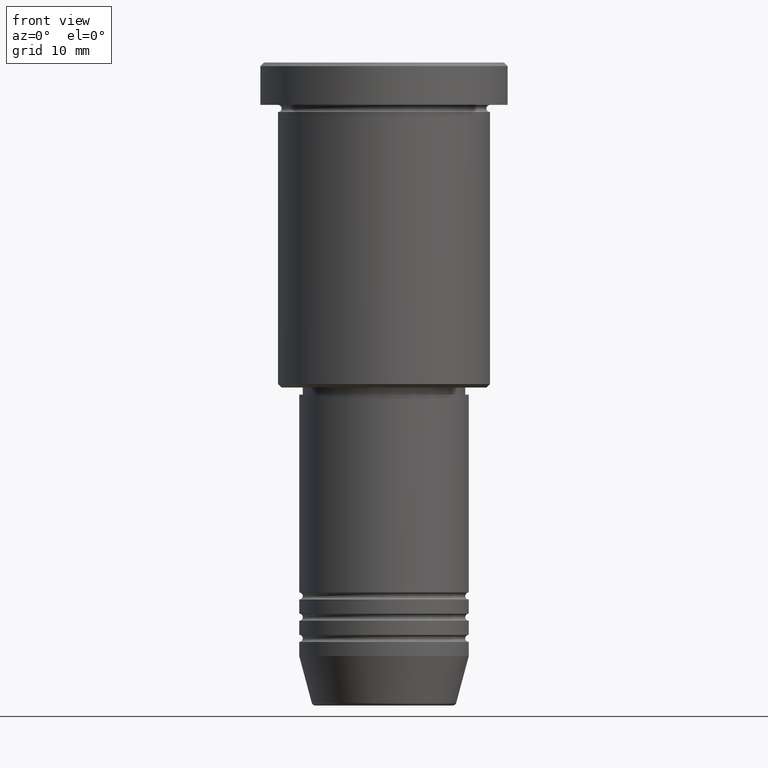
[diagram: clean part render]
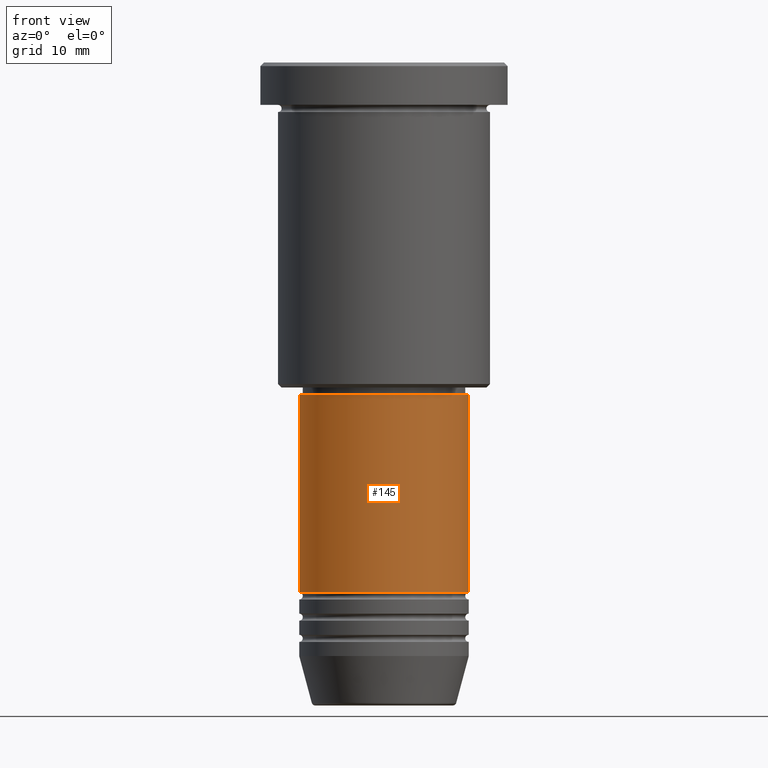
[diagram: same view with one face highlighted and labeled with its STEP entity id]
A machine part, front view. The second image highlights one B-rep face of the part: STEP entity #145.
In plain terms, the highlighted cylindrical surface (partial cylindrical patch) has radius 12 mm, axis along (-0, -0, 1).
Its self-contained STEP definition (entity closure, byte-faithful):
#13 = CARTESIAN_POINT ( 'NONE',  ( -12.00000000000000000, 1.469576158976823947E-15, 0.000000000000000000 ) ) ;
#92 = DIRECTION ( 'NONE',  ( 1.000000000000000000, 0.000000000000000000, 0.000000000000000000 ) ) ;
#98 = DIRECTION ( 'NONE',  ( -0.000000000000000000, -0.000000000000000000, 1.000000000000000000 ) ) ;
#108 = CARTESIAN_POINT ( 'NONE',  ( 12.00000000000000000, 0.000000000000000000, 0.000000000000000000 ) ) ;
#145 = ADVANCED_FACE ( 'NONE', ( #602 ), #1037, .T. ) ;
#195 = DIRECTION ( 'NONE',  ( -0.000000000000000000, -0.000000000000000000, 1.000000000000000000 ) ) ;
#206 = DIRECTION ( 'NONE',  ( 1.000000000000000000, 0.000000000000000000, 0.000000000000000000 ) ) ;
#224 = VECTOR ( 'NONE', #195, 1000.000000000000000 ) ;
#233 = DIRECTION ( 'NONE',  ( -0.000000000000000000, -0.000000000000000000, 1.000000000000000000 ) ) ;
#241 = ORIENTED_EDGE ( 'NONE', *, *, #492, .T. ) ;
#343 = VERTEX_POINT ( 'NONE', #349 ) ;
#349 = CARTESIAN_POINT ( 'NONE',  ( -12.00000000000000000, 1.469576158976823947E-15, -74.99999999999997158 ) ) ;
#383 = ORIENTED_EDGE ( 'NONE', *, *, #444, .T. ) ;
#419 = AXIS2_PLACEMENT_3D ( 'NONE', #460, #920, #92 ) ;
#444 = EDGE_CURVE ( 'NONE', #985, #960, #1006, .T. ) ;
#458 = AXIS2_PLACEMENT_3D ( 'NONE', #647, #98, #544 ) ;
#460 = CARTESIAN_POINT ( 'NONE',  ( 0.000000000000000000, 0.000000000000000000, -46.99999999999997158 ) ) ;
#492 = EDGE_CURVE ( 'NONE', #343, #985, #1111, .T. ) ;
#526 = EDGE_CURVE ( 'NONE', #343, #1116, #1110, .T. ) ;
#544 = DIRECTION ( 'NONE',  ( 1.000000000000000000, 0.000000000000000000, 0.000000000000000000 ) ) ;
#602 = FACE_OUTER_BOUND ( 'NONE', #625, .T. ) ;
#625 = EDGE_LOOP ( 'NONE', ( #1012, #241, #383, #1014 ) ) ;
#647 = CARTESIAN_POINT ( 'NONE',  ( 0.000000000000000000, 0.000000000000000000, -74.99999999999997158 ) ) ;
#728 = CARTESIAN_POINT ( 'NONE',  ( 12.00000000000000000, 0.000000000000000000, -46.99999999999997158 ) ) ;
#745 = VECTOR ( 'NONE', #833, 1000.000000000000000 ) ;
#757 = CARTESIAN_POINT ( 'NONE',  ( 0.000000000000000000, 0.000000000000000000, 0.000000000000000000 ) ) ;
#832 = CARTESIAN_POINT ( 'NONE',  ( 12.00000000000000000, 0.000000000000000000, -74.99999999999997158 ) ) ;
#833 = DIRECTION ( 'NONE',  ( -0.000000000000000000, -0.000000000000000000, 1.000000000000000000 ) ) ;
#920 = DIRECTION ( 'NONE',  ( -0.000000000000000000, -0.000000000000000000, 1.000000000000000000 ) ) ;
#928 = EDGE_CURVE ( 'NONE', #1116, #960, #932, .T. ) ;
#932 = CIRCLE ( 'NONE', #419, 12.00000000000000000 ) ;
#960 = VERTEX_POINT ( 'NONE', #728 ) ;
#985 = VERTEX_POINT ( 'NONE', #832 ) ;
#1006 = LINE ( 'NONE', #108, #224 ) ;
#1012 = ORIENTED_EDGE ( 'NONE', *, *, #526, .F. ) ;
#1014 = ORIENTED_EDGE ( 'NONE', *, *, #928, .F. ) ;
#1023 = CARTESIAN_POINT ( 'NONE',  ( -12.00000000000000000, 1.469576158976823947E-15, -46.99999999999997158 ) ) ;
#1037 = CYLINDRICAL_SURFACE ( 'NONE', #1079, 12.00000000000000000 ) ;
#1079 = AXIS2_PLACEMENT_3D ( 'NONE', #757, #233, #206 ) ;
#1110 = LINE ( 'NONE', #13, #745 ) ;
#1111 = CIRCLE ( 'NONE', #458, 12.00000000000000000 ) ;
#1116 = VERTEX_POINT ( 'NONE', #1023 ) ;